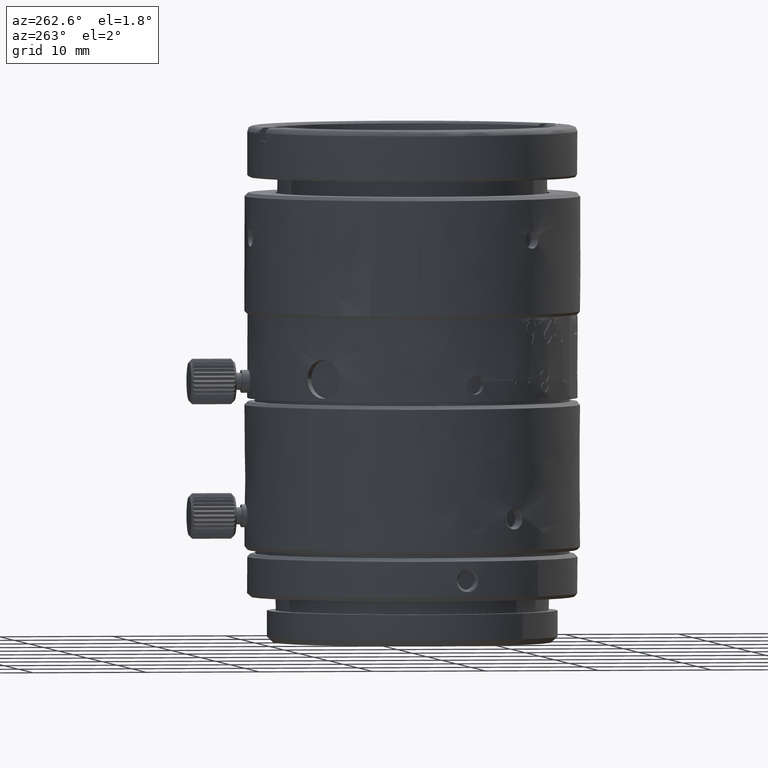
[diagram: clean part render]
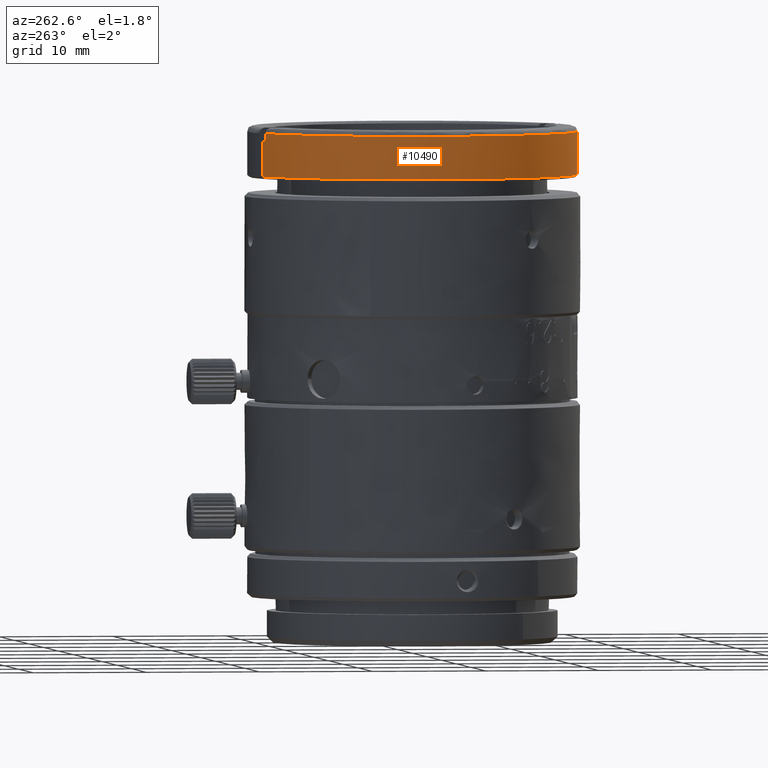
[diagram: same view with one face highlighted and labeled with its STEP entity id]
A machine part, auxiliary view. The second image highlights one B-rep face of the part: STEP entity #10490.
In plain terms, the highlighted face is a freeform B-spline surface patch.
Its self-contained STEP definition (entity closure, byte-faithful):
#138 = ORIENTED_EDGE ( 'NONE', *, *, #31587, .F. ) ;
#246 = CARTESIAN_POINT ( 'NONE',  ( 4.408642923843574479, -13.81353928457379965, 23.29405000079999866 ) ) ;
#1565 = CARTESIAN_POINT ( 'NONE',  ( 4.218029714802391972, -13.87437420539326993, 23.29404999999999859 ) ) ;
#1807 = CARTESIAN_POINT ( 'NONE',  ( -4.408642922213024562, 13.81353928529370023, 20.19405000000000072 ) ) ;
#1819 = CARTESIAN_POINT ( 'NONE',  ( -4.976461688615539281, 13.61928151831371814, 23.29405000039999862 ) ) ;
#2530 = VERTEX_POINT ( 'NONE', #246 ) ;
#2816 = CARTESIAN_POINT ( 'NONE',  ( -4.976461688615539281, 13.61928151831371814, 23.29405000039999862 ) ) ;
#2882 = CARTESIAN_POINT ( 'NONE',  ( 3.833272232983265138, -13.98413472468550012, 23.29405000039999862 ) ) ;
#3019 = CARTESIAN_POINT ( 'NONE',  ( -16.39606251805128423, 3.683141047318280403, 20.19405000000000072 ) ) ;
#3133 = CARTESIAN_POINT ( 'NONE',  ( -11.23101605214026222, -12.50042689298468801, 20.19405000000000072 ) ) ;
#3329 = B_SPLINE_CURVE_WITH_KNOTS ( 'NONE', 1,
 ( #7154, #19176 ),
 .UNSPECIFIED., .F., .F.,
 ( 2, 2 ),
 ( -1.000000000000000000, 0.0000000000000000000 ),
 .UNSPECIFIED. ) ;
#4167 =( BOUNDED_CURVE ( )  B_SPLINE_CURVE ( 3, ( #20668, #8653, #3019, #29213, #20486, #23773, #22468 ),
 .UNSPECIFIED., .F., .T. ) 
 B_SPLINE_CURVE_WITH_KNOTS ( ( 4, 3, 4 ),
 ( -5.021324096825500405, -3.450527770030602959, -1.879731443235705068 ),
 .UNSPECIFIED. ) 
 CURVE ( )  GEOMETRIC_REPRESENTATION_ITEM ( )  RATIONAL_B_SPLINE_CURVE ( ( 1.000000000000000000, 0.8047378540760217192, 0.8047378540760217192, 1.000000000000000000, 0.8047378540760217192, 0.8047378540760217192, 1.000000000000000000 ) ) 
 REPRESENTATION_ITEM ( '' )  );
#5499 = CARTESIAN_POINT ( 'NONE',  ( 3.833272232983265138, -13.98413472468550012, 23.29405000039999862 ) ) ;
#5856 = CARTESIAN_POINT ( 'NONE',  ( -12.50042689068116530, 11.23101605470414377, 23.99404999999999788 ) ) ;
#5947 = VERTEX_POINT ( 'NONE', #25813 ) ;
#6100 = ORIENTED_EDGE ( 'NONE', *, *, #11537, .T. ) ;
#6949 = CARTESIAN_POINT ( 'NONE',  ( 4.408642922213024562, -13.81353928529370023, 20.19405000000000072 ) ) ;
#7067 = CARTESIAN_POINT ( 'NONE',  ( -4.408642919239064817, 13.81353928604334058, 23.29405000079999866 ) ) ;
#7154 = CARTESIAN_POINT ( 'NONE',  ( -4.408642919239064817, 13.81353928604334058, 23.29405000079999866 ) ) ;
#8394 = CARTESIAN_POINT ( 'NONE',  ( -4.976461689717949888, 13.61928151748995930, 23.99405000005259936 ) ) ;
#8653 = CARTESIAN_POINT ( 'NONE',  ( -12.50042689068116886, 11.23101605470414199, 20.19405000000000072 ) ) ;
#8772 = CARTESIAN_POINT ( 'NONE',  ( -16.39606251805128423, 3.683141047318279959, 20.19405000000000072 ) ) ;
#9164 = CARTESIAN_POINT ( 'NONE',  ( -11.23101605214026222, -12.50042689298468801, 23.99404999999999788 ) ) ;
#9194 = CARTESIAN_POINT ( 'NONE',  ( 4.408642923843574479, -13.81353928457379965, 23.29405000079999866 ) ) ;
#10316 = CARTESIAN_POINT ( 'NONE',  ( 4.026239485096263060, -13.93123935219259479, 23.29405000000000214 ) ) ;
#10490 = ADVANCED_FACE ( 'NONE', ( #14413 ), #29446, .F. ) ;
#10508 = CARTESIAN_POINT ( 'NONE',  ( 3.833272232983265138, -13.98413472468550012, 23.29405000039999862 ) ) ;
#11341 = B_SPLINE_CURVE_WITH_KNOTS ( 'NONE', 1,
 ( #35979, #29593 ),
 .UNSPECIFIED., .F., .F.,
 ( 2, 2 ),
 ( -1.000000000000000000, 0.0000000000000000000 ),
 .UNSPECIFIED. ) ;
#11537 = EDGE_CURVE ( 'NONE', #26903, #17769, #4167, .T. ) ;
#11673 = EDGE_LOOP ( 'NONE', ( #29118, #138, #27570, #26247, #28682, #29070, #29243, #6100 ) ) ;
#12083 = CARTESIAN_POINT ( 'NONE',  ( -4.408642920000000132, 13.81353928600000103, 23.99404999999999788 ) ) ;
#12085 = VERTEX_POINT ( 'NONE', #34558 ) ;
#12673 = CARTESIAN_POINT ( 'NONE',  ( 4.408642922213024562, -13.81353928529370023, 20.19405000000000072 ) ) ;
#12688 = B_SPLINE_CURVE_WITH_KNOTS ( 'NONE', 1,
 ( #2882, #19762 ),
 .UNSPECIFIED., .F., .F.,
 ( 2, 2 ),
 ( -1.000000000000000000, 0.0000000000000000000 ),
 .UNSPECIFIED. ) ;
#14228 = CARTESIAN_POINT ( 'NONE',  ( 3.833272231611814629, -13.98413472475539798, 23.99405000005259936 ) ) ;
#14413 = FACE_OUTER_BOUND ( 'NONE', #11673, .T. ) ;
#16943 = CARTESIAN_POINT ( 'NONE',  ( 3.833272231611814629, -13.98413472475539798, 23.99405000005259936 ) ) ;
#17325 = CARTESIAN_POINT ( 'NONE',  ( -13.81353928509577322, -4.408642922833204025, 20.19405000000000072 ) ) ;
#17769 = VERTEX_POINT ( 'NONE', #6949 ) ;
#18192 = VERTEX_POINT ( 'NONE', #2816 ) ;
#18967 = B_SPLINE_CURVE_WITH_KNOTS ( 'NONE', 3,
 ( #10508, #10316, #1565, #25427 ),
 .UNSPECIFIED., .F., .F.,
 ( 4, 4 ),
 ( 4.979932968814639871, 5.021324096825500405 ),
 .UNSPECIFIED. ) ;
#19176 = CARTESIAN_POINT ( 'NONE',  ( -4.408642922213024562, 13.81353928529370023, 20.19405000000000072 ) ) ;
#19399 = VERTEX_POINT ( 'NONE', #5499 ) ;
#19762 = CARTESIAN_POINT ( 'NONE',  ( 3.833272231611814629, -13.98413472475539798, 23.99405000005259936 ) ) ;
#20486 = CARTESIAN_POINT ( 'NONE',  ( -11.23101605214026222, -12.50042689298468801, 20.19405000000000072 ) ) ;
#20570 = EDGE_CURVE ( 'NONE', #17769, #2530, #35937, .T. ) ;
#20668 = CARTESIAN_POINT ( 'NONE',  ( -4.408642922213024562, 13.81353928529370023, 20.19405000000000072 ) ) ;
#20844 = B_SPLINE_CURVE_WITH_KNOTS ( 'NONE', 3,
 ( #7067, #36935, #30908, #1819 ),
 .UNSPECIFIED., .F., .F.,
 ( 4, 4 ),
 ( 1.879731443235705068, 1.921122571320414973 ),
 .UNSPECIFIED. ) ;
#20981 = CARTESIAN_POINT ( 'NONE',  ( -3.683141043955391769, -16.39606251880671195, 23.99404999999999788 ) ) ;
#22468 = CARTESIAN_POINT ( 'NONE',  ( 4.408642922213024562, -13.81353928529370023, 20.19405000000000072 ) ) ;
#22552 = CARTESIAN_POINT ( 'NONE',  ( -21.97517145409546302, -21.05863681842551927, 23.99405000055773485 ) ) ;
#23773 = CARTESIAN_POINT ( 'NONE',  ( -3.683141043955392213, -16.39606251880671195, 20.19405000000000072 ) ) ;
#23893 = CARTESIAN_POINT ( 'NONE',  ( -13.81353928509577322, -4.408642922833204025, 23.99404999999999788 ) ) ;
#25427 = CARTESIAN_POINT ( 'NONE',  ( 4.408642923843574479, -13.81353928457379965, 23.29405000079999866 ) ) ;
#25813 = CARTESIAN_POINT ( 'NONE',  ( -4.408642919239064817, 13.81353928604334058, 23.29405000079999866 ) ) ;
#26247 = ORIENTED_EDGE ( 'NONE', *, *, #37687, .F. ) ;
#26612 = CARTESIAN_POINT ( 'NONE',  ( -4.408642920000000132, 13.81353928600000103, 20.19405000000000072 ) ) ;
#26804 = CARTESIAN_POINT ( 'NONE',  ( -3.683141043955391769, -16.39606251880671195, 20.19405000000000072 ) ) ;
#26903 = VERTEX_POINT ( 'NONE', #1807 ) ;
#27570 = ORIENTED_EDGE ( 'NONE', *, *, #28746, .T. ) ;
#28682 = ORIENTED_EDGE ( 'NONE', *, *, #36102, .T. ) ;
#28746 = EDGE_CURVE ( 'NONE', #19399, #33356, #12688, .T. ) ;
#29070 = ORIENTED_EDGE ( 'NONE', *, *, #30330, .F. ) ;
#29118 = ORIENTED_EDGE ( 'NONE', *, *, #20570, .T. ) ;
#29213 = CARTESIAN_POINT ( 'NONE',  ( -13.81353928509577322, -4.408642922833203137, 20.19405000000000072 ) ) ;
#29243 = ORIENTED_EDGE ( 'NONE', *, *, #29716, .T. ) ;
#29446 =( BOUNDED_SURFACE ( )  B_SPLINE_SURFACE ( 1, 3, ( 
 ( #26612, #38060, #8772, #17325, #3133, #26804, #32238 ),
 ( #12083, #5856, #29904, #23893, #9164, #20981, #32810 ) ),
 .UNSPECIFIED., .F., .F., .T. ) 
 B_SPLINE_SURFACE_WITH_KNOTS ( ( 2, 2 ),
 ( 4, 3, 4 ),
 ( 0.0000000000000000000, 1.000000000000000000 ),
 ( 0.0000000000000000000, 0.5000000000000000000, 1.000000000000000000 ),
 .UNSPECIFIED. ) 
 GEOMETRIC_REPRESENTATION_ITEM ( )  RATIONAL_B_SPLINE_SURFACE ( (
 ( 1.000000000000000000, 0.8047378540760217192, 0.8047378540760217192, 1.000000000000000000, 0.8047378540760217192, 0.8047378540760217192, 1.000000000000000000),
 ( 1.000000000000000000, 0.8047378540760217192, 0.8047378540760217192, 1.000000000000000000, 0.8047378540760217192, 0.8047378540760217192, 1.000000000000000000) ) ) 
 REPRESENTATION_ITEM ( '' )  SURFACE ( )  );
#29593 = CARTESIAN_POINT ( 'NONE',  ( -4.976461688615539281, 13.61928151831371814, 23.29405000039999862 ) ) ;
#29716 = EDGE_CURVE ( 'NONE', #5947, #26903, #3329, .T. ) ;
#29904 = CARTESIAN_POINT ( 'NONE',  ( -16.39606251805128423, 3.683141047318279959, 23.99404999999999788 ) ) ;
#30330 = EDGE_CURVE ( 'NONE', #5947, #18192, #20844, .T. ) ;
#30908 = CARTESIAN_POINT ( 'NONE',  ( -4.788529048553965772, 13.68795177641600525, 23.29404999999999859 ) ) ;
#31587 = EDGE_CURVE ( 'NONE', #19399, #2530, #18967, .T. ) ;
#31863 = CARTESIAN_POINT ( 'NONE',  ( -30.11154991027228078, 4.434964157427724984, 23.99405000055773485 ) ) ;
#32238 = CARTESIAN_POINT ( 'NONE',  ( 4.408642925666407919, -13.81353928419154542, 20.19405000000000072 ) ) ;
#32810 = CARTESIAN_POINT ( 'NONE',  ( 4.408642925666407919, -13.81353928419154542, 23.99404999999999788 ) ) ;
#33356 = VERTEX_POINT ( 'NONE', #16943 ) ;
#34558 = CARTESIAN_POINT ( 'NONE',  ( -4.976461689717949888, 13.61928151748995930, 23.99405000005259936 ) ) ;
#34721 =( BOUNDED_CURVE ( )  B_SPLINE_CURVE ( 3, ( #8394, #31863, #22552, #14228 ),
 .UNSPECIFIED., .F., .T. ) 
 B_SPLINE_CURVE_WITH_KNOTS ( ( 4, 4 ),
 ( 1.921122571320414973, 4.979932968814639871 ),
 .UNSPECIFIED. ) 
 CURVE ( )  GEOMETRIC_REPRESENTATION_ITEM ( )  RATIONAL_B_SPLINE_CURVE ( ( 0.9397289228042479126, 0.3391665309306120535, 0.3391665309306119980, 0.9397289228042476905 ) ) 
 REPRESENTATION_ITEM ( '' )  );
#35937 = B_SPLINE_CURVE_WITH_KNOTS ( 'NONE', 1,
 ( #12673, #9194 ),
 .UNSPECIFIED., .F., .F.,
 ( 2, 2 ),
 ( -1.000000000000000000, 0.0000000000000000000 ),
 .UNSPECIFIED. ) ;
#35979 = CARTESIAN_POINT ( 'NONE',  ( -4.976461689717949888, 13.61928151748995930, 23.99405000005259936 ) ) ;
#36102 = EDGE_CURVE ( 'NONE', #12085, #18192, #11341, .T. ) ;
#36935 = CARTESIAN_POINT ( 'NONE',  ( -4.599256125593428557, 13.75270436528334450, 23.29404999999999859 ) ) ;
#37687 = EDGE_CURVE ( 'NONE', #12085, #33356, #34721, .T. ) ;
#38060 = CARTESIAN_POINT ( 'NONE',  ( -12.50042689068116530, 11.23101605470414377, 20.19405000000000072 ) ) ;